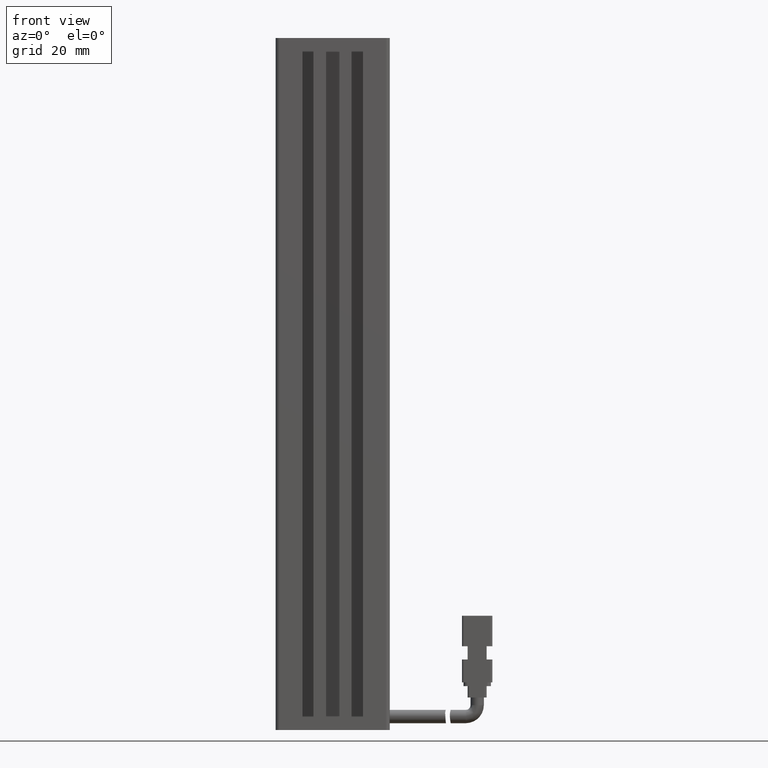
[diagram: clean part render]
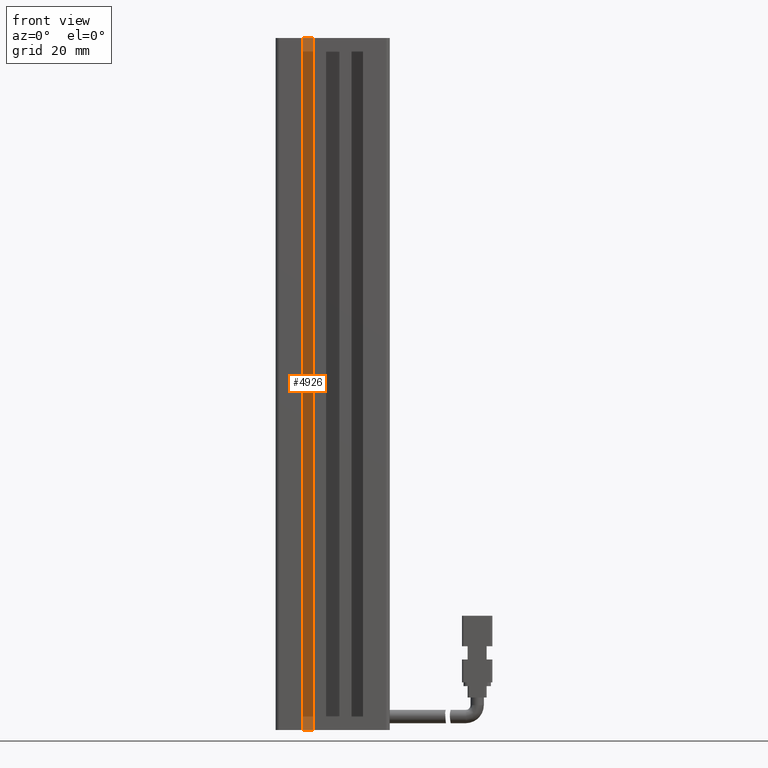
[diagram: same view with one face highlighted and labeled with its STEP entity id]
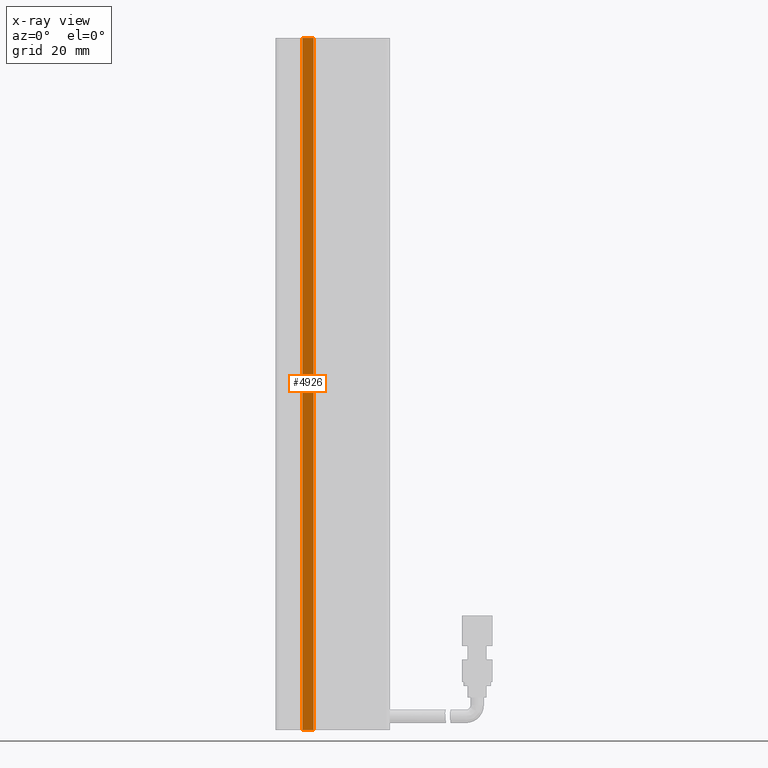
[diagram: x-ray of the same camera — body ghosted, the highlighted face saturated]
A machine part, front view. The second image highlights one B-rep face of the part: STEP entity #4926.
The next image is the same camera in x-ray: the body ghosted, the highlighted face saturated — about 0% of this face is hidden behind the body in this view.
In plain terms, the highlighted planar face has unit normal (0, 1, 0).
Its self-contained STEP definition (entity closure, byte-faithful):
#598 = ORIENTED_EDGE ( 'NONE', *, *, #40393, .F. ) ;
#1076 = CARTESIAN_POINT ( 'NONE',  ( 32.92537974683543200, 16.19594479660386500, -24.00000000000000700 ) ) ;
#1491 = VERTEX_POINT ( 'NONE', #5761 ) ;
#1493 = DIRECTION ( 'NONE',  ( 0.0000000000000000000, -0.0000000000000000000, 1.000000000000000000 ) ) ;
#1544 = DIRECTION ( 'NONE',  ( 0.0000000000000000000, 1.000000000000000000, 0.0000000000000000000 ) ) ;
#1679 = CARTESIAN_POINT ( 'NONE',  ( 40.92537974683542500, 16.19594479660386500, -24.00000000000000700 ) ) ;
#2062 = PLANE ( 'NONE',  #13304 ) ;
#4775 = EDGE_CURVE ( 'NONE', #1491, #30818, #22371, .T. ) ;
#4926 = ADVANCED_FACE ( 'NONE', ( #9290 ), #2062, .F. ) ;
#5761 = CARTESIAN_POINT ( 'NONE',  ( 32.92537974683543200, 16.19594479660386500, -206.0000000000000300 ) ) ;
#8429 = CARTESIAN_POINT ( 'NONE',  ( 32.92537974683543200, 16.19594479660386500, -24.00000000000000700 ) ) ;
#9290 = FACE_OUTER_BOUND ( 'NONE', #19473, .T. ) ;
#13304 = AXIS2_PLACEMENT_3D ( 'NONE', #1679, #1544, #1493 ) ;
#14626 = CARTESIAN_POINT ( 'NONE',  ( 35.92537974683543200, 16.19594479660386500, -24.00000000000000700 ) ) ;
#15220 = DIRECTION ( 'NONE',  ( 0.0000000000000000000, -0.0000000000000000000, 1.000000000000000000 ) ) ;
#17244 = VERTEX_POINT ( 'NONE', #31819 ) ;
#19473 = EDGE_LOOP ( 'NONE', ( #598, #39501, #40661, #24052 ) ) ;
#19617 = VECTOR ( 'NONE', #25923, 1000.000000000000000 ) ;
#22235 = VECTOR ( 'NONE', #35919, 1000.000000000000000 ) ;
#22371 = LINE ( 'NONE', #8429, #30198 ) ;
#22565 = CARTESIAN_POINT ( 'NONE',  ( 40.92537974683542500, 16.19594479660386500, -24.00000000000000700 ) ) ;
#24052 = ORIENTED_EDGE ( 'NONE', *, *, #29984, .T. ) ;
#24171 = VECTOR ( 'NONE', #35880, 1000.000000000000000 ) ;
#25853 = CARTESIAN_POINT ( 'NONE',  ( 40.92537974683542500, 16.19594479660386500, -206.0000000000000300 ) ) ;
#25923 = DIRECTION ( 'NONE',  ( 1.000000000000000000, 0.0000000000000000000, 0.0000000000000000000 ) ) ;
#27862 = EDGE_CURVE ( 'NONE', #30818, #38140, #38410, .T. ) ;
#29984 = EDGE_CURVE ( 'NONE', #1491, #17244, #33051, .T. ) ;
#30198 = VECTOR ( 'NONE', #15220, 1000.000000000000000 ) ;
#30818 = VERTEX_POINT ( 'NONE', #1076 ) ;
#31819 = CARTESIAN_POINT ( 'NONE',  ( 35.92537974683543200, 16.19594479660386500, -206.0000000000000300 ) ) ;
#32115 = LINE ( 'NONE', #32557, #22235 ) ;
#32557 = CARTESIAN_POINT ( 'NONE',  ( 35.92537974683543200, 16.19594479660386500, -24.00000000000000700 ) ) ;
#33051 = LINE ( 'NONE', #25853, #24171 ) ;
#35880 = DIRECTION ( 'NONE',  ( 1.000000000000000000, 0.0000000000000000000, 0.0000000000000000000 ) ) ;
#35919 = DIRECTION ( 'NONE',  ( -0.0000000000000000000, -0.0000000000000000000, -1.000000000000000000 ) ) ;
#38140 = VERTEX_POINT ( 'NONE', #14626 ) ;
#38410 = LINE ( 'NONE', #22565, #19617 ) ;
#39501 = ORIENTED_EDGE ( 'NONE', *, *, #27862, .F. ) ;
#40393 = EDGE_CURVE ( 'NONE', #38140, #17244, #32115, .T. ) ;
#40661 = ORIENTED_EDGE ( 'NONE', *, *, #4775, .F. ) ;